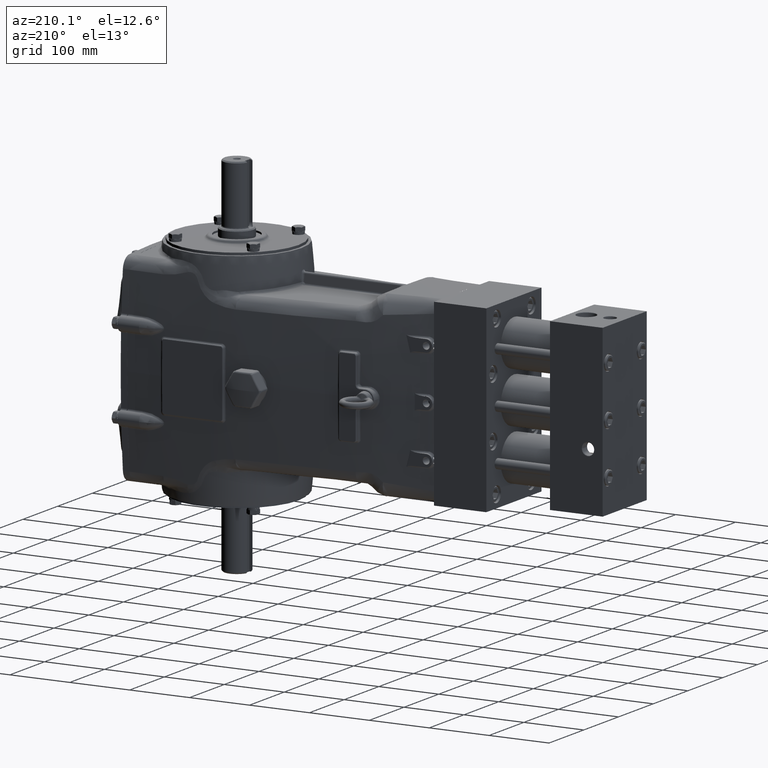
[diagram: clean part render]
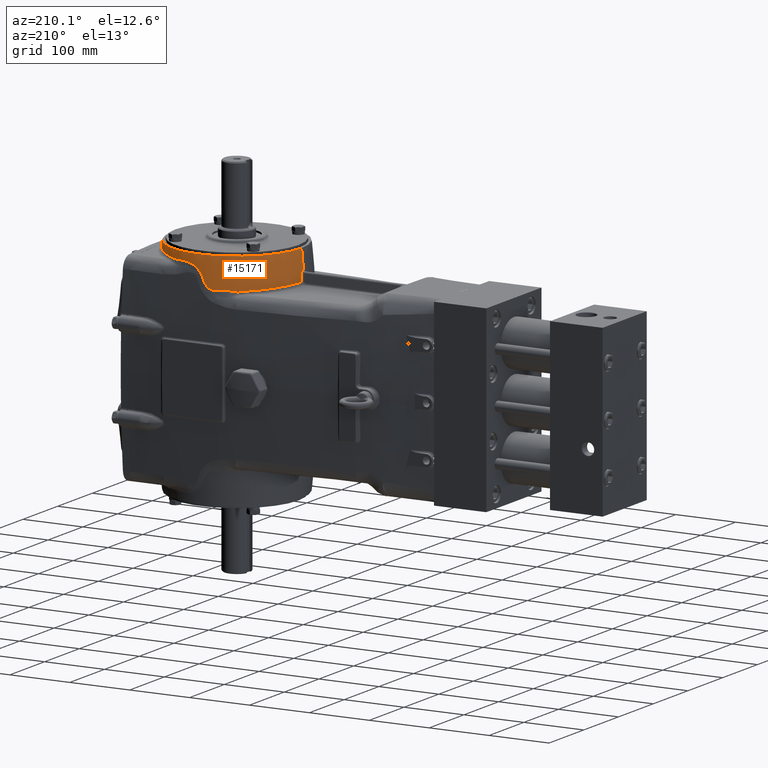
[diagram: same view with one face highlighted and labeled with its STEP entity id]
A machine part, auxiliary view. The second image highlights one B-rep face of the part: STEP entity #15171.
In plain terms, the highlighted toroidal blend (fillet) surface has major radius 1682.47 mm and minor (blend) radius 1800 mm.
Its self-contained STEP definition (entity closure, byte-faithful):
#51 = CARTESIAN_POINT ( 'NONE',  ( -6.293190228131174457, -3.506384020325842066, 6.711587711169872073 ) ) ;
#124 = CARTESIAN_POINT ( 'NONE',  ( -6.877532267147037359, -7.777023534952098416, 7.283464566929135131 ) ) ;
#1093 = CARTESIAN_POINT ( 'NONE',  ( -10.48484881237197719, -5.205675868782868143, 5.328301537645602437 ) ) ;
#1210 = B_SPLINE_CURVE_WITH_KNOTS ( 'NONE', 3,
 ( #61998, #24031, #13942, #8876, #18644, #48393, #4161, #47463, #51, #9181 ),
 .UNSPECIFIED., .F., .F.,
 ( 4, 2, 2, 2, 4 ),
 ( 0.000000000000000000, 0.2500000000000000000, 0.5000000000000000000, 0.7500000000000000000, 1.000000000000000000 ),
 .UNSPECIFIED. ) ;
#1225 = AXIS2_PLACEMENT_3D ( 'NONE', #124, #19028, #33294 ) ;
#1401 = CARTESIAN_POINT ( 'NONE',  ( -11.24916596189269846, -7.608763977826694003, 5.975618015182229570 ) ) ;
#1402 = CARTESIAN_POINT ( 'NONE',  ( -11.28647578024280307, -7.417666437786466282, 5.377815659974974238 ) ) ;
#1675 = ORIENTED_EDGE ( 'NONE', *, *, #20552, .F. ) ;
#1846 = CARTESIAN_POINT ( 'NONE',  ( -4.838283324564878640, -3.982815634011248829, 6.730431314061511294 ) ) ;
#2185 = EDGE_CURVE ( 'NONE', #24594, #36574, #1210, .T. ) ;
#2460 = CARTESIAN_POINT ( 'NONE',  ( -6.877532267147037359, -7.777023534952098416, 0.000000000000000000 ) ) ;
#2799 = AXIS2_PLACEMENT_3D ( 'NONE', #2460, #50193, #54613 ) ;
#4029 = EDGE_CURVE ( 'NONE', #10882, #19465, #6335, .T. ) ;
#4161 = CARTESIAN_POINT ( 'NONE',  ( -6.627701266730970708, -3.460807200691002894, 6.570115963626620648 ) ) ;
#4714 = CARTESIAN_POINT ( 'NONE',  ( -8.878269761202588484, -3.822856063416012251, 5.279402687187370269 ) ) ;
#6126 = CARTESIAN_POINT ( 'NONE',  ( -11.24617953577672758, -7.709885195497703236, 6.042801323709148242 ) ) ;
#6127 = CARTESIAN_POINT ( 'NONE',  ( -11.29132998392119980, -7.493655018635947407, 5.378145251033981999 ) ) ;
#6230 = CARTESIAN_POINT ( 'NONE',  ( -11.25702473014356819, -7.554639773868542463, 5.852955202024553216 ) ) ;
#6335 = B_SPLINE_CURVE_WITH_KNOTS ( 'NONE', 3,
 ( #35519, #40262, #20650, #39940 ),
 .UNSPECIFIED., .F., .F.,
 ( 4, 4 ),
 ( 0.000000000000000000, 1.000000000000000000 ),
 .UNSPECIFIED. ) ;
#6439 = CARTESIAN_POINT ( 'NONE',  ( -11.25244732490879151, -7.572478560901362066, 5.918305894830615976 ) ) ;
#6491 = CIRCLE ( 'NONE', #26670, 70.86614173228348079 ) ;
#6697 = VERTEX_POINT ( 'NONE', #24601 ) ;
#6864 = CARTESIAN_POINT ( 'NONE',  ( -8.011290141148975863, -3.493790205404967431, 5.276745014148334967 ) ) ;
#6951 = CIRCLE ( 'NONE', #27137, 70.86614173228348079 ) ;
#7348 = ORIENTED_EDGE ( 'NONE', *, *, #15730, .F. ) ;
#7571 = B_SPLINE_CURVE_WITH_KNOTS ( 'NONE', 3,
 ( #55669, #52164, #46184, #55984, #46817, #23062, #31938, #7913, #37304, #27210 ),
 .UNSPECIFIED., .F., .F.,
 ( 4, 2, 2, 2, 4 ),
 ( 0.000000000000000000, 0.5000000000000000000, 0.7500000000000000000, 0.8750000000000000000, 1.000000000000000000 ),
 .UNSPECIFIED. ) ;
#7875 = EDGE_CURVE ( 'NONE', #21540, #6697, #6951, .T. ) ;
#7913 = CARTESIAN_POINT ( 'NONE',  ( -4.435329372576965135, -4.234520536638068045, 6.774240557062714885 ) ) ;
#8302 = CARTESIAN_POINT ( 'NONE',  ( -2.584133457188017235, -7.776841133715849175, 6.870678561288082520 ) ) ;
#8510 = CARTESIAN_POINT ( 'NONE',  ( -9.147811346571458557, -3.967485988487939874, 5.234226587578229228 ) ) ;
#8876 = CARTESIAN_POINT ( 'NONE',  ( -6.987428778716878064, -3.427488694473308506, 6.258531481469339575 ) ) ;
#8989 = CARTESIAN_POINT ( 'NONE',  ( 59.36135812510458010, -7.777023534952090422, 0.000000000000000000 ) ) ;
#9126 = CARTESIAN_POINT ( 'NONE',  ( -8.152928088963228959, -3.535959279159695878, 5.301532495803813028 ) ) ;
#9181 = CARTESIAN_POINT ( 'NONE',  ( -6.173586683167537004, -3.528024309190790575, 6.730461151574938405 ) ) ;
#10100 = CARTESIAN_POINT ( 'NONE',  ( -8.056095087319855352, -3.506816131194396391, 5.285594249401850853 ) ) ;
#10349 = CARTESIAN_POINT ( 'NONE',  ( -11.28055724113563585, -7.513988104950835023, 5.536433248766212678 ) ) ;
#10551 = CARTESIAN_POINT ( 'NONE',  ( -11.24742093563797418, -7.649091876568328452, 6.012333718027438323 ) ) ;
#10709 = ORIENTED_EDGE ( 'NONE', *, *, #28001, .F. ) ;
#10882 = VERTEX_POINT ( 'NONE', #13350 ) ;
#10975 = CARTESIAN_POINT ( 'NONE',  ( -7.835154634217751379, -3.451123783646826038, 5.278393056415300322 ) ) ;
#11167 = CARTESIAN_POINT ( 'NONE',  ( -11.24604163163693471, -7.722910981056097413, 6.046545029794906156 ) ) ;
#11478 = CARTESIAN_POINT ( 'NONE',  ( -10.38364518721545515, -5.068687988398564492, 5.322736744850883994 ) ) ;
#11492 = DIRECTION ( 'NONE',  ( -0.000000000000000000, 1.000000000000000000, 0.000000000000000000 ) ) ;
#11696 = CARTESIAN_POINT ( 'NONE',  ( -11.29132998392119980, -7.493655018635947407, 5.378145251033981999 ) ) ;
#13274 = CARTESIAN_POINT ( 'NONE',  ( -8.479172780170260992, -3.648613334463849611, 5.327386723590408657 ) ) ;
#13350 = CARTESIAN_POINT ( 'NONE',  ( -9.533701936740015981, -4.231535589341689274, 5.282505151415223033 ) ) ;
#13366 = CARTESIAN_POINT ( 'NONE',  ( -2.584133468603174055, -7.776658033178870610, 6.870678560534044799 ) ) ;
#13704 = ORIENTED_EDGE ( 'NONE', *, *, #4029, .F. ) ;
#13942 = CARTESIAN_POINT ( 'NONE',  ( -7.120535293375544583, -3.415757661757919283, 6.062460271814747337 ) ) ;
#14284 = CARTESIAN_POINT ( 'NONE',  ( -2.584133457314162552, -7.777024236620074582, 6.870678561282304031 ) ) ;
#14495 = B_SPLINE_CURVE_WITH_KNOTS ( 'NONE', 3,
 ( #6230, #20431, #10349, #24874 ),
 .UNSPECIFIED., .F., .F.,
 ( 4, 4 ),
 ( 0.000000000000000000, 0.01219152699875865331 ),
 .UNSPECIFIED. ) ;
#14590 = VERTEX_POINT ( 'NONE', #37956 ) ;
#14817 = CARTESIAN_POINT ( 'NONE',  ( -5.585906290066065871, -3.670785403384337453, 6.775253291642230558 ) ) ;
#15081 = ORIENTED_EDGE ( 'NONE', *, *, #51915, .F. ) ;
#15171 = ADVANCED_FACE ( 'NONE', ( #50826 ), #57305, .T. ) ;
#15523 = VERTEX_POINT ( 'NONE', #34565 ) ;
#15730 = EDGE_CURVE ( 'NONE', #19465, #37604, #32889, .T. ) ;
#15906 = CARTESIAN_POINT ( 'NONE',  ( -10.16619069913292961, -4.807139198126797019, 5.311362857922122593 ) ) ;
#16181 = VERTEX_POINT ( 'NONE', #51070 ) ;
#16216 = CARTESIAN_POINT ( 'NONE',  ( -9.669729368400883374, -4.333962718405853565, 5.288068215051191068 ) ) ;
#16527 = CARTESIAN_POINT ( 'NONE',  ( -9.802049415736002302, -4.446153589977999587, 5.293916907421603035 ) ) ;
#17272 = CARTESIAN_POINT ( 'NONE',  ( -7.968017531978486723, -3.482253027556490466, 5.272750126488242373 ) ) ;
#17988 = CARTESIAN_POINT ( 'NONE',  ( -8.080377852916425852, -3.513876050253792016, 5.290198571732675603 ) ) ;
#18149 = DIRECTION ( 'NONE',  ( 1.224646799147353207E-16, -1.000000000000000000, 0.000000000000000000 ) ) ;
#18379 = CARTESIAN_POINT ( 'NONE',  ( -4.410594165530262067, -4.251857323485193518, 6.775298839652080574 ) ) ;
#18588 = CARTESIAN_POINT ( 'NONE',  ( -9.060904404283718350, -3.917957322644919582, 5.247415265385990679 ) ) ;
#18644 = CARTESIAN_POINT ( 'NONE',  ( -6.908053776028983961, -3.433664628415169506, 6.346637850282847104 ) ) ;
#18999 = CARTESIAN_POINT ( 'NONE',  ( -4.126904525965337633, -4.451653573454971813, 6.786115934765562407 ) ) ;
#19028 = DIRECTION ( 'NONE',  ( 0.000000000000000000, 0.000000000000000000, 1.000000000000000000 ) ) ;
#19465 = VERTEX_POINT ( 'NONE', #32270 ) ;
#19652 = B_SPLINE_CURVE_WITH_KNOTS ( 'NONE', 3,
 ( #24287, #48334, #38815, #48654, #14817, #34094, #53384, #43889, #53995, #1846, #35014, #25849 ),
 .UNSPECIFIED., .F., .F.,
 ( 4, 2, 2, 2, 2, 4 ),
 ( 0.000000000000000000, 0.2500000000000000000, 0.5000000000000001110, 0.7500000000000000000, 0.8750000000000000000, 1.000000000000000000 ),
 .UNSPECIFIED. ) ;
#20331 = CARTESIAN_POINT ( 'NONE',  ( -11.25702473014356819, -7.554639773868542463, 5.852955202024553216 ) ) ;
#20431 = CARTESIAN_POINT ( 'NONE',  ( -11.26912359257195995, -7.534318905606816941, 5.694718666316944677 ) ) ;
#20552 = EDGE_CURVE ( 'NONE', #37604, #24594, #61167, .T. ) ;
#20650 = CARTESIAN_POINT ( 'NONE',  ( -9.339022617379210800, -4.090039122878795119, 5.267704717956004146 ) ) ;
#21540 = VERTEX_POINT ( 'NONE', #56357 ) ;
#21692 = CARTESIAN_POINT ( 'NONE',  ( -7.880347546651294444, -3.460997349847184879, 5.273493159814409914 ) ) ;
#22834 = CARTESIAN_POINT ( 'NONE',  ( -3.535032110063477617, -5.068312694930794393, 6.814503213744548482 ) ) ;
#23048 = CARTESIAN_POINT ( 'NONE',  ( -8.140837262898820370, -3.532208496503414175, 5.299824753543205702 ) ) ;
#23062 = CARTESIAN_POINT ( 'NONE',  ( -4.472578629731807531, -4.208872039511187602, 6.772031314512171107 ) ) ;
#23832 = DIRECTION ( 'NONE',  ( 1.000000000000000000, 1.233581138472395964E-16, 0.000000000000000000 ) ) ;
#23978 = CARTESIAN_POINT ( 'NONE',  ( -8.199647789143346799, -3.550790102722054087, 5.307722151790932763 ) ) ;
#24031 = CARTESIAN_POINT ( 'NONE',  ( -7.172219275269475780, -3.410248922957614948, 5.956697487076924702 ) ) ;
#24287 = CARTESIAN_POINT ( 'NONE',  ( -6.173586683167537004, -3.528024309190790575, 6.730461151574938405 ) ) ;
#24594 = VERTEX_POINT ( 'NONE', #24692 ) ;
#24601 = CARTESIAN_POINT ( 'NONE',  ( -11.24581146665230946, -7.777023534951640116, 6.052903952729693948 ) ) ;
#24692 = CARTESIAN_POINT ( 'NONE',  ( -7.209745772715600687, -3.403763670155442789, 5.844200593887214801 ) ) ;
#24874 = CARTESIAN_POINT ( 'NONE',  ( -11.29132998392119980, -7.493655018635947407, 5.378145251033981999 ) ) ;
#25714 = CARTESIAN_POINT ( 'NONE',  ( -10.98733115624464141, -6.102991539165183887, 5.358031105136011440 ) ) ;
#25849 = CARTESIAN_POINT ( 'NONE',  ( -4.713703032325651243, -4.054579207735735658, 6.743573777071479647 ) ) ;
#26029 = CARTESIAN_POINT ( 'NONE',  ( -11.24581146665230769, -7.763428512296064454, 6.052903952729665527 ) ) ;
#26149 = CARTESIAN_POINT ( 'NONE',  ( -7.398568877314791514, -3.395567980143750386, 5.516762586927963952 ) ) ;
#26469 = CARTESIAN_POINT ( 'NONE',  ( -7.704315264879130432, -3.426736428175106042, 5.311084454706302083 ) ) ;
#26670 = AXIS2_PLACEMENT_3D ( 'NONE', #35517, #11492, #45338 ) ;
#26898 = ORIENTED_EDGE ( 'NONE', *, *, #41799, .F. ) ;
#27137 = AXIS2_PLACEMENT_3D ( 'NONE', #8989, #18149, #23832 ) ;
#27210 = CARTESIAN_POINT ( 'NONE',  ( -4.410594165530262067, -4.251857323485193518, 6.775298839652080574 ) ) ;
#28001 = EDGE_CURVE ( 'NONE', #16181, #58034, #14495, .T. ) ;
#28152 = EDGE_CURVE ( 'NONE', #15523, #21540, #35527, .T. ) ;
#28428 = CARTESIAN_POINT ( 'NONE',  ( -8.171078880403140232, -3.541661022650314461, 5.303911764792186290 ) ) ;
#30145 = CARTESIAN_POINT ( 'NONE',  ( -11.24778386809400921, -7.638275545169602054, 6.004155115772661588 ) ) ;
#30443 = CARTESIAN_POINT ( 'NONE',  ( -11.25326100726218037, -7.567315034026133702, 5.905650689245947049 ) ) ;
#30478 = ORIENTED_EDGE ( 'NONE', *, *, #59212, .F. ) ;
#30749 = CARTESIAN_POINT ( 'NONE',  ( -11.24585725244726220, -7.749623575892153227, 6.051605994522383014 ) ) ;
#31751 = ORIENTED_EDGE ( 'NONE', *, *, #2185, .F. ) ;
#31938 = CARTESIAN_POINT ( 'NONE',  ( -4.460144369636372730, -4.217378372837001343, 6.772842248895813100 ) ) ;
#32270 = CARTESIAN_POINT ( 'NONE',  ( -9.228399431262843677, -4.019192586877864848, 5.248966763422030724 ) ) ;
#32326 = CARTESIAN_POINT ( 'NONE',  ( -2.747469588142500196, -6.587636364895171681, 6.860042091109575857 ) ) ;
#32872 = B_SPLINE_CURVE_WITH_KNOTS ( 'NONE', 3,
 ( #18379, #18999, #37074, #22834, #33261, #51629, #43066, #62345, #46888, #37379, #32326, #32953, #56992, #13366, #8302, #14284 ),
 .UNSPECIFIED., .F., .F.,
 ( 4, 2, 2, 2, 2, 2, 2, 4 ),
 ( 0.000000000000000000, 0.1249999999999999445, 0.1875000000000000000, 0.2499999999999999722, 0.3124999999999999445, 0.3750000000000000000, 0.4999999999999999445, 0.5000664358783538654 ),
 .UNSPECIFIED. ) ;
#32889 = B_SPLINE_CURVE_WITH_KNOTS ( 'NONE', 3,
 ( #43279, #8510, #18588, #4714, #52454, #42038, #13274, #51844, #62251, #23978, #61331, #33168, #28428, #9126, #23048, #42968, #17988, #52765 ),
 .UNSPECIFIED., .F., .F.,
 ( 4, 2, 2, 2, 2, 2, 2, 2, 4 ),
 ( 0.000000000000000000, 0.2500000000000000000, 0.5000000000000000000, 0.7499999999999998890, 0.8750000000000000000, 0.8906249999999998890, 0.9062499999999998890, 0.9374999999999998890, 1.000000000000000000 ),
 .UNSPECIFIED. ) ;
#32953 = CARTESIAN_POINT ( 'NONE',  ( -2.624840511696574730, -7.091635812668506844, 6.867941007160434097 ) ) ;
#33168 = CARTESIAN_POINT ( 'NONE',  ( -8.178586552284919264, -3.544042485189184077, 5.304967438366846366 ) ) ;
#33261 = CARTESIAN_POINT ( 'NONE',  ( -3.429375224983977066, -5.204926276797372964, 6.820070359646357439 ) ) ;
#33294 = DIRECTION ( 'NONE',  ( 1.000000000000000000, 0.000000000000000000, 0.000000000000000000 ) ) ;
#34094 = CARTESIAN_POINT ( 'NONE',  ( -5.340208797062239832, -3.755108242940149221, 6.763536466322247698 ) ) ;
#34107 = EDGE_LOOP ( 'NONE', ( #54579, #51369, #48803, #44863, #30478, #26898, #31751, #1675, #7348, #13704, #15081, #10709, #41928 ) ) ;
#34565 = CARTESIAN_POINT ( 'NONE',  ( -2.625563763210029489, -7.777023534952098416, 7.283464566929135131 ) ) ;
#35014 = CARTESIAN_POINT ( 'NONE',  ( -4.775634327140639179, -4.017410966162649366, 6.733010125727523665 ) ) ;
#35517 = CARTESIAN_POINT ( 'NONE',  ( -73.11642265939866547, -7.777023534952098416, 0.000000000000000000 ) ) ;
#35519 = CARTESIAN_POINT ( 'NONE',  ( -9.533701936740015981, -4.231535589341689274, 5.282505151415223033 ) ) ;
#35527 = CIRCLE ( 'NONE', #1225, 4.251968503937008315 ) ;
#35625 = CARTESIAN_POINT ( 'NONE',  ( -7.209745772715600687, -3.403763670155442789, 5.844200593887214801 ) ) ;
#35811 = CARTESIAN_POINT ( 'NONE',  ( -11.22121080491631950, -6.924416499397716862, 5.373409765925829085 ) ) ;
#35931 = CARTESIAN_POINT ( 'NONE',  ( -7.620315515747186019, -3.414369786156155939, 5.347171295919333822 ) ) ;
#36140 = CARTESIAN_POINT ( 'NONE',  ( -11.10314088611153061, -6.423402263981166094, 5.365590020723418618 ) ) ;
#36283 = EDGE_CURVE ( 'NONE', #6697, #16181, #53358, .T. ) ;
#36569 = CARTESIAN_POINT ( 'NONE',  ( -7.283080451331474414, -3.395155195330854969, 5.668219529769782383 ) ) ;
#36574 = VERTEX_POINT ( 'NONE', #57308 ) ;
#37074 = CARTESIAN_POINT ( 'NONE',  ( -3.872874065916759090, -4.681314654715281520, 6.797642826554940676 ) ) ;
#37304 = CARTESIAN_POINT ( 'NONE',  ( -4.422948632218617782, -4.243156365064375102, 6.774827894362493552 ) ) ;
#37379 = CARTESIAN_POINT ( 'NONE',  ( -2.798764376221301919, -6.421274701595180545, 6.856775444044343359 ) ) ;
#37604 = VERTEX_POINT ( 'NONE', #10100 ) ;
#37956 = CARTESIAN_POINT ( 'NONE',  ( -2.584133457314162552, -7.777024236620074582, 6.870678561282304031 ) ) ;
#38815 = CARTESIAN_POINT ( 'NONE',  ( -5.943409060385350884, -3.573913002429952357, 6.761723157704317977 ) ) ;
#39618 = CARTESIAN_POINT ( 'NONE',  ( -11.24865736135374306, -7.618060634269825826, 5.985768041256679162 ) ) ;
#39921 = CARTESIAN_POINT ( 'NONE',  ( -11.25032095860886550, -7.592297415047407405, 5.954093092697021916 ) ) ;
#39922 = CARTESIAN_POINT ( 'NONE',  ( -11.25115877794959829, -7.095518557322600728, 5.375427073901979824 ) ) ;
#39940 = CARTESIAN_POINT ( 'NONE',  ( -9.228399431262843677, -4.019192586877864848, 5.248966763422030724 ) ) ;
#40262 = CARTESIAN_POINT ( 'NONE',  ( -9.434617341662740131, -4.156925769475126486, 5.278450608759968077 ) ) ;
#40674 = CARTESIAN_POINT ( 'NONE',  ( -7.502034378505872070, -3.401647109014010351, 5.421757519516296142 ) ) ;
#41302 = CARTESIAN_POINT ( 'NONE',  ( -8.056095087319855352, -3.506816131194396391, 5.285594249401850853 ) ) ;
#41799 = EDGE_CURVE ( 'NONE', #36574, #59210, #19652, .T. ) ;
#41928 = ORIENTED_EDGE ( 'NONE', *, *, #36283, .F. ) ;
#42038 = CARTESIAN_POINT ( 'NONE',  ( -8.582925212364216350, -3.690139210221309529, 5.322517604324133345 ) ) ;
#42968 = CARTESIAN_POINT ( 'NONE',  ( -8.104562797762895343, -3.521096737644320740, 5.294339200309758020 ) ) ;
#43066 = CARTESIAN_POINT ( 'NONE',  ( -3.146508389013438212, -5.638988800599041618, 6.835781808530537518 ) ) ;
#43279 = CARTESIAN_POINT ( 'NONE',  ( -9.228399431262843677, -4.019192586877864848, 5.248966763422030724 ) ) ;
#43889 = CARTESIAN_POINT ( 'NONE',  ( -5.026873045147980612, -3.887990280012837641, 6.736243147658607988 ) ) ;
#44706 = CARTESIAN_POINT ( 'NONE',  ( -11.24656355613304548, -7.684495109929981638, 6.032886401947552990 ) ) ;
#44863 = ORIENTED_EDGE ( 'NONE', *, *, #45404, .F. ) ;
#45014 = CARTESIAN_POINT ( 'NONE',  ( -10.04994020545035660, -4.682577987000196451, 5.305553257928020905 ) ) ;
#45129 = CARTESIAN_POINT ( 'NONE',  ( -7.367034800163043684, -3.394841306238499890, 5.553176953064300925 ) ) ;
#45338 = DIRECTION ( 'NONE',  ( 0.000000000000000000, 0.000000000000000000, 1.000000000000000000 ) ) ;
#45404 = EDGE_CURVE ( 'NONE', #52718, #14590, #32872, .T. ) ;
#45633 = CARTESIAN_POINT ( 'NONE',  ( -10.75816531998187209, -5.642830926885906706, 5.344074871956995487 ) ) ;
#45754 = CARTESIAN_POINT ( 'NONE',  ( -7.240410868588325499, -3.398464233739932450, 5.752273332139098194 ) ) ;
#46184 = CARTESIAN_POINT ( 'NONE',  ( -4.610429077941210707, -4.117806214949250254, 6.759014475328799065 ) ) ;
#46817 = CARTESIAN_POINT ( 'NONE',  ( -4.509963129853623798, -4.183546227827429576, 6.769276077848618733 ) ) ;
#46888 = CARTESIAN_POINT ( 'NONE',  ( -2.919395047480691119, -6.099584770139752976, 6.849288625759075266 ) ) ;
#47463 = CARTESIAN_POINT ( 'NONE',  ( -6.409997031826626390, -3.488756622832676069, 6.674160810989098636 ) ) ;
#48334 = CARTESIAN_POINT ( 'NONE',  ( -6.058689549600857482, -3.548802035907183683, 6.748280835876477646 ) ) ;
#48393 = CARTESIAN_POINT ( 'NONE',  ( -6.727587688332503646, -3.450413428641201374, 6.503293248622949108 ) ) ;
#48654 = CARTESIAN_POINT ( 'NONE',  ( -5.706770766793264116, -3.634946989004471884, 6.775338701252778151 ) ) ;
#48803 = ORIENTED_EDGE ( 'NONE', *, *, #49569, .T. ) ;
#49450 = CARTESIAN_POINT ( 'NONE',  ( -11.24581146665230946, -7.777023534951640116, 6.052903952729693948 ) ) ;
#49569 = EDGE_CURVE ( 'NONE', #15523, #14590, #6491, .T. ) ;
#49760 = CARTESIAN_POINT ( 'NONE',  ( -11.25502808417781608, -7.559285064521533926, 5.879804742476927970 ) ) ;
#50058 = CARTESIAN_POINT ( 'NONE',  ( -11.25598520077930331, -7.556385734647108166, 5.866550821144940642 ) ) ;
#50193 = DIRECTION ( 'NONE',  ( 0.000000000000000000, 0.000000000000000000, -1.000000000000000000 ) ) ;
#50826 = FACE_OUTER_BOUND ( 'NONE', #34107, .T. ) ;
#51070 = CARTESIAN_POINT ( 'NONE',  ( -11.25702473014356819, -7.554639773868542463, 5.852955202024553216 ) ) ;
#51369 = ORIENTED_EDGE ( 'NONE', *, *, #28152, .F. ) ;
#51629 = CARTESIAN_POINT ( 'NONE',  ( -3.234458927594284106, -5.491283464419556282, 6.830747052247509110 ) ) ;
#51844 = CARTESIAN_POINT ( 'NONE',  ( -8.317494065046732388, -3.590083029753130983, 5.320199855085085971 ) ) ;
#51915 = EDGE_CURVE ( 'NONE', #58034, #10882, #52787, .T. ) ;
#52164 = CARTESIAN_POINT ( 'NONE',  ( -4.661169267755416179, -4.086083596862686740, 6.752093087151194162 ) ) ;
#52454 = CARTESIAN_POINT ( 'NONE',  ( -8.782454682534194035, -3.777258950792140357, 5.298690464018896762 ) ) ;
#52718 = VERTEX_POINT ( 'NONE', #60972 ) ;
#52765 = CARTESIAN_POINT ( 'NONE',  ( -8.056095087319855352, -3.506816131194396391, 5.285594249401850853 ) ) ;
#52787 = B_SPLINE_CURVE_WITH_KNOTS ( 'NONE', 3,
 ( #6127, #1402, #54805, #39922, #35811, #36140, #25714, #45633, #59240, #1093, #11478, #15906, #45014, #16527, #16216, #55116 ),
 .UNSPECIFIED., .F., .F.,
 ( 4, 2, 2, 2, 2, 2, 2, 4 ),
 ( 0.5346225976832228444, 0.5624999999999777955, 0.6249999999999809042, 0.7499999999999873435, 0.8124999999999904521, 0.8749999999999936717, 0.9374999999999968914, 1.000000000000000000 ),
 .UNSPECIFIED. ) ;
#53358 = B_SPLINE_CURVE_WITH_KNOTS ( 'NONE', 3,
 ( #49450, #26029, #30749, #11167, #6126, #44706, #54173, #10551, #30145, #39618, #1401, #39921, #53563, #6439, #30443, #49760, #50058, #20331 ),
 .UNSPECIFIED., .F., .F.,
 ( 4, 2, 2, 2, 2, 2, 2, 2, 4 ),
 ( 0.008343475335291236986, 0.009386853366007894689, 0.01043023139672455413, 0.01147360942744121183, 0.01251698745815786953, 0.01356036548887452897, 0.01460374351959118668, 0.01564712155030784438, 0.01669049958102450382 ),
 .UNSPECIFIED. ) ;
#53384 = CARTESIAN_POINT ( 'NONE',  ( -5.215312841261362742, -3.803561155755146306, 6.751256551182327925 ) ) ;
#53563 = CARTESIAN_POINT ( 'NONE',  ( -11.25097106249549128, -7.585032952067229495, 5.942635652879796559 ) ) ;
#53995 = CARTESIAN_POINT ( 'NONE',  ( -4.963895845632464443, -3.918105199718644460, 6.732006680853401370 ) ) ;
#54173 = CARTESIAN_POINT ( 'NONE',  ( -11.24681158718501273, -7.672130726170288462, 6.026676285087911644 ) ) ;
#54579 = ORIENTED_EDGE ( 'NONE', *, *, #7875, .F. ) ;
#54613 = DIRECTION ( 'NONE',  ( 1.000000000000000000, 0.000000000000000000, 0.000000000000000000 ) ) ;
#54805 = CARTESIAN_POINT ( 'NONE',  ( -11.27966006228983176, -7.341704400936142072, 5.377353623491520018 ) ) ;
#55116 = CARTESIAN_POINT ( 'NONE',  ( -9.533701936740015981, -4.231535589341689274, 5.282505151415223033 ) ) ;
#55240 = CARTESIAN_POINT ( 'NONE',  ( -7.579087520856405469, -3.409313095543523797, 5.369700536338315899 ) ) ;
#55669 = CARTESIAN_POINT ( 'NONE',  ( -4.713703032325651243, -4.054579207735735658, 6.743573777071479647 ) ) ;
#55984 = CARTESIAN_POINT ( 'NONE',  ( -4.534995096185375552, -4.166919908348612367, 6.767009593136589451 ) ) ;
#56357 = CARTESIAN_POINT ( 'NONE',  ( -11.12950077108404479, -7.777023534952098416, 7.283464566929135131 ) ) ;
#56920 = CARTESIAN_POINT ( 'NONE',  ( -4.713703032325651243, -4.054579207735735658, 6.743573777071479647 ) ) ;
#56992 = CARTESIAN_POINT ( 'NONE',  ( -2.584177228958034256, -7.431973274141055796, 6.870675659284853687 ) ) ;
#57305 = TOROIDAL_SURFACE ( 'NONE', #2799, -66.23889039225161923, 70.86614173228348079 ) ;
#57308 = CARTESIAN_POINT ( 'NONE',  ( -6.173586683167537004, -3.528024309190790575, 6.730461151574938405 ) ) ;
#58034 = VERTEX_POINT ( 'NONE', #11696 ) ;
#59210 = VERTEX_POINT ( 'NONE', #56920 ) ;
#59212 = EDGE_CURVE ( 'NONE', #59210, #52718, #7571, .T. ) ;
#59240 = CARTESIAN_POINT ( 'NONE',  ( -10.67193490952210233, -5.492302772681909140, 5.338959236652898177 ) ) ;
#59669 = CARTESIAN_POINT ( 'NONE',  ( -7.465924099107285272, -3.398975890567577984, 5.451284390820688941 ) ) ;
#59982 = CARTESIAN_POINT ( 'NONE',  ( -7.747364033990776555, -3.434058749287793422, 5.297247556464789398 ) ) ;
#60972 = CARTESIAN_POINT ( 'NONE',  ( -4.410594165530262067, -4.251857323485193518, 6.775298839652080574 ) ) ;
#61167 = B_SPLINE_CURVE_WITH_KNOTS ( 'NONE', 3,
 ( #41302, #6864, #17272, #21692, #10975, #59982, #26469, #35931, #55240, #40674, #59669, #26149, #45129, #36569, #45754, #35625 ),
 .UNSPECIFIED., .F., .F.,
 ( 4, 2, 2, 2, 2, 2, 2, 4 ),
 ( 0.000000000000000000, 0.1250000000000000833, 0.2500000000000001665, 0.3750000000000002220, 0.5000000000000003331, 0.6250000000000004441, 0.7500000000000004441, 1.000000000000000000 ),
 .UNSPECIFIED. ) ;
#61331 = CARTESIAN_POINT ( 'NONE',  ( -8.192638249962982400, -3.548533128296706085, 5.306826060297141545 ) ) ;
#61998 = CARTESIAN_POINT ( 'NONE',  ( -7.209745772715600687, -3.403763670155442789, 5.844200593887214801 ) ) ;
#62251 = CARTESIAN_POINT ( 'NONE',  ( -8.262587370383192464, -3.571205802901352033, 5.315483095493060972 ) ) ;
#62345 = CARTESIAN_POINT ( 'NONE',  ( -2.988975468005197644, -5.943138997563686132, 6.845052372577536737 ) ) ;